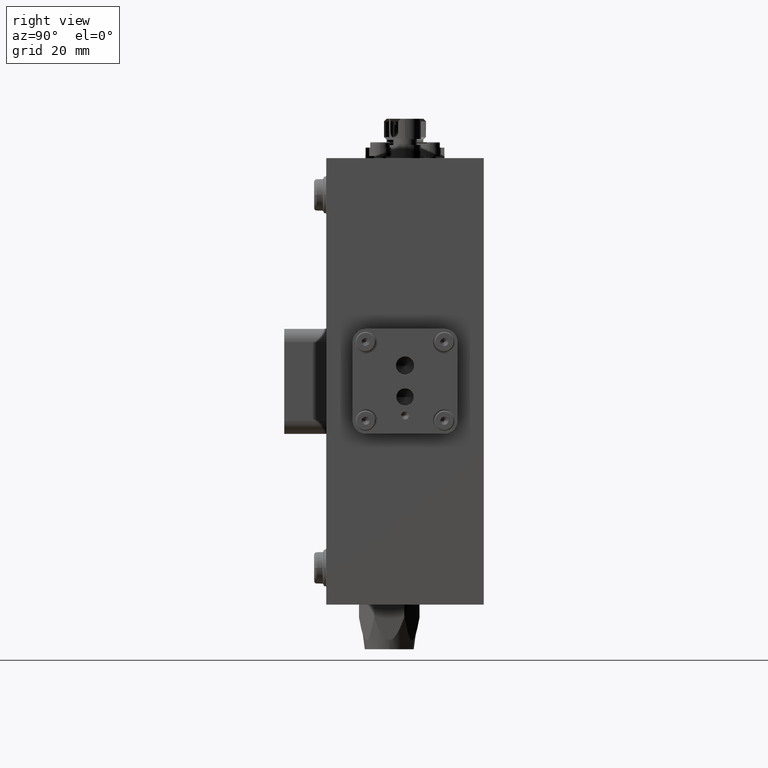
[diagram: clean part render]
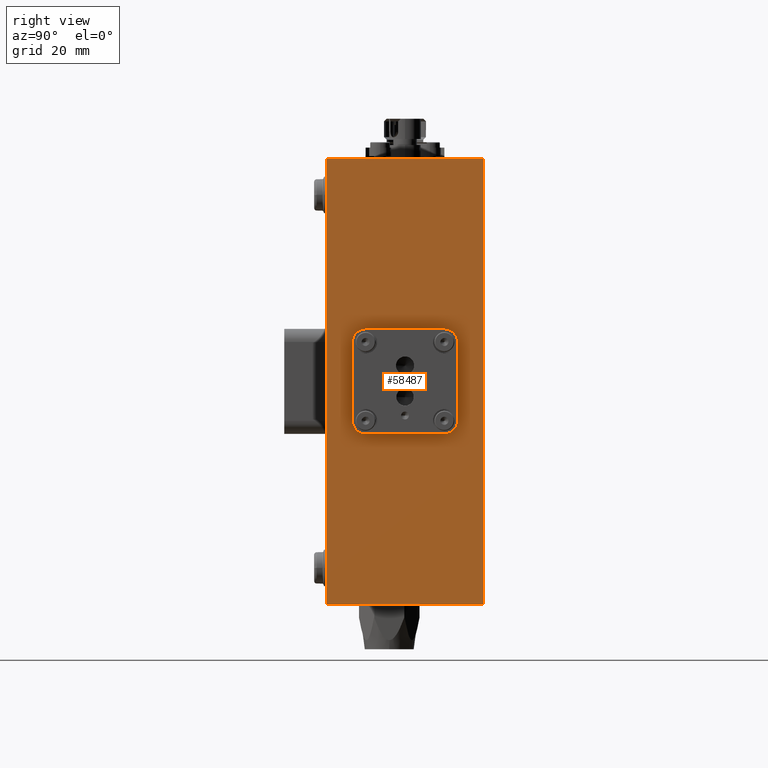
[diagram: same view with one face highlighted and labeled with its STEP entity id]
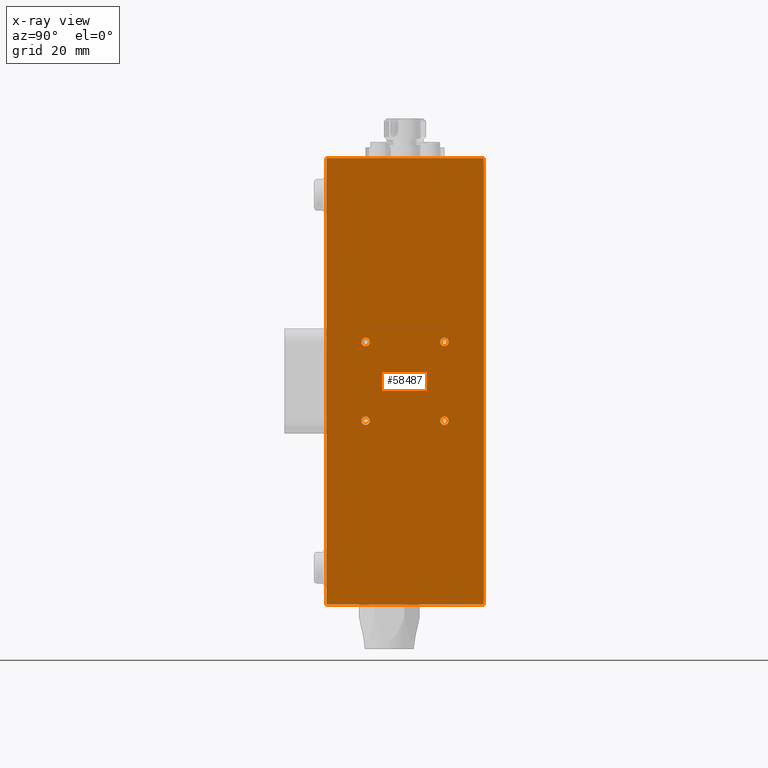
[diagram: x-ray of the same camera — body ghosted, the highlighted face saturated]
A machine part, right view. The second image highlights one B-rep face of the part: STEP entity #58487.
The next image is the same camera in x-ray: the body ghosted, the highlighted face saturated — about 0% of this face is hidden behind the body in this view.
In plain terms, the highlighted planar face has unit normal (-1, 0, 0).
Its self-contained STEP definition (entity closure, byte-faithful):
#9668 = CARTESIAN_POINT ( 'NONE',  ( 40.00000000000000000, 0.0000000000000000000, 42.49999999999999300 ) ) ;
#12467 = CARTESIAN_POINT ( 'NONE',  ( 40.00000000000000000, 30.00000000000000000, -42.49999999999999300 ) ) ;
#12607 = CARTESIAN_POINT ( 'NONE',  ( 40.00000000000000000, 30.00000000000000000, 42.49999999999999300 ) ) ;
#13657 = DIRECTION ( 'NONE',  ( -0.0000000000000000000, -0.0000000000000000000, -1.000000000000000000 ) ) ;
#13658 = VECTOR ( 'NONE', #13657, 1000.000000000000000 ) ;
#13659 = CARTESIAN_POINT ( 'NONE',  ( 40.00000000000000000, 0.0000000000000000000, -42.49999999999999300 ) ) ;
#13661 = LINE ( 'NONE', #13659, #13658 ) ;
#14645 = LINE ( 'NONE', #14701, #14700 ) ;
#14656 = DIRECTION ( 'NONE',  ( 0.0000000000000000000, 0.0000000000000000000, -1.000000000000000000 ) ) ;
#14657 = DIRECTION ( 'NONE',  ( 1.000000000000000000, -0.0000000000000000000, -0.0000000000000000000 ) ) ;
#14658 = CARTESIAN_POINT ( 'NONE',  ( 40.00000000000000000, 22.50000000000000000, -7.499999999999998200 ) ) ;
#14659 = AXIS2_PLACEMENT_3D ( 'NONE', #14658, #14657, #14656 ) ;
#14660 = CIRCLE ( 'NONE', #14659, 0.7999999999999882800 ) ;
#14682 = DIRECTION ( 'NONE',  ( -0.0000000000000000000, -1.000000000000000000, -0.0000000000000000000 ) ) ;
#14683 = VECTOR ( 'NONE', #14682, 1000.000000000000000 ) ;
#14684 = CARTESIAN_POINT ( 'NONE',  ( 40.00000000000000000, 30.00000000000000000, -42.49999999999999300 ) ) ;
#14685 = LINE ( 'NONE', #14684, #14683 ) ;
#14699 = DIRECTION ( 'NONE',  ( -0.0000000000000000000, -1.000000000000000000, -0.0000000000000000000 ) ) ;
#14700 = VECTOR ( 'NONE', #14699, 1000.000000000000000 ) ;
#14701 = CARTESIAN_POINT ( 'NONE',  ( 40.00000000000000000, 30.00000000000000000, 42.49999999999999300 ) ) ;
#14721 = DIRECTION ( 'NONE',  ( -0.0000000000000000000, -0.0000000000000000000, -1.000000000000000000 ) ) ;
#14722 = VECTOR ( 'NONE', #14721, 1000.000000000000000 ) ;
#14723 = CARTESIAN_POINT ( 'NONE',  ( 40.00000000000000000, 30.00000000000000000, -42.49999999999999300 ) ) ;
#14736 = LINE ( 'NONE', #14723, #14722 ) ;
#15441 = CARTESIAN_POINT ( 'NONE',  ( 40.00000000000000000, 22.50000000000000000, 7.500000000000001800 ) ) ;
#15513 = DIRECTION ( 'NONE',  ( 0.0000000000000000000, 0.0000000000000000000, -1.000000000000000000 ) ) ;
#15514 = DIRECTION ( 'NONE',  ( 1.000000000000000000, -0.0000000000000000000, -0.0000000000000000000 ) ) ;
#15519 = AXIS2_PLACEMENT_3D ( 'NONE', #15441, #15514, #15513 ) ;
#15521 = CIRCLE ( 'NONE', #15519, 0.7999999999999882800 ) ;
#15859 = AXIS2_PLACEMENT_3D ( 'NONE', #15957, #15948, #15947 ) ;
#15893 = CIRCLE ( 'NONE', #15859, 0.7999999999999899400 ) ;
#15924 = DIRECTION ( 'NONE',  ( 0.0000000000000000000, 0.0000000000000000000, 1.000000000000000000 ) ) ;
#15925 = DIRECTION ( 'NONE',  ( -1.000000000000000000, 0.0000000000000000000, 0.0000000000000000000 ) ) ;
#15932 = FACE_BOUND ( 'NONE', #58159, .T. ) ;
#15938 = PLANE ( 'NONE',  #15940 ) ;
#15939 = FACE_BOUND ( 'NONE', #57863, .T. ) ;
#15940 = AXIS2_PLACEMENT_3D ( 'NONE', #15945, #15925, #15924 ) ;
#15945 = CARTESIAN_POINT ( 'NONE',  ( 40.00000000000000000, 30.00000000000000000, -42.49999999999999300 ) ) ;
#15946 = FACE_BOUND ( 'NONE', #58724, .T. ) ;
#15947 = DIRECTION ( 'NONE',  ( 0.0000000000000000000, 0.0000000000000000000, -1.000000000000000000 ) ) ;
#15948 = DIRECTION ( 'NONE',  ( 1.000000000000000000, -0.0000000000000000000, -0.0000000000000000000 ) ) ;
#15951 = FACE_OUTER_BOUND ( 'NONE', #57900, .T. ) ;
#15957 = CARTESIAN_POINT ( 'NONE',  ( 40.00000000000000000, 7.500000000000000000, 7.500000000000003600 ) ) ;
#15959 = FACE_BOUND ( 'NONE', #58784, .T. ) ;
#15962 = CARTESIAN_POINT ( 'NONE',  ( 40.00000000000000000, 0.0000000000000000000, -42.49999999999999300 ) ) ;
#16803 = DIRECTION ( 'NONE',  ( 0.0000000000000000000, 0.0000000000000000000, -1.000000000000000000 ) ) ;
#16804 = DIRECTION ( 'NONE',  ( 1.000000000000000000, -0.0000000000000000000, -0.0000000000000000000 ) ) ;
#16808 = CIRCLE ( 'NONE', #16820, 0.7999999999999899400 ) ;
#16809 = CARTESIAN_POINT ( 'NONE',  ( 40.00000000000000000, 7.500000000000000000, -7.500000000000003600 ) ) ;
#16820 = AXIS2_PLACEMENT_3D ( 'NONE', #16809, #16804, #16803 ) ;
#41513 = CARTESIAN_POINT ( 'NONE',  ( 40.00000000000000000, 22.50000000000000000, -8.299999999999986500 ) ) ;
#41585 = CARTESIAN_POINT ( 'NONE',  ( 40.00000000000000000, 22.50000000000000000, -6.700000000000009900 ) ) ;
#41713 = CIRCLE ( 'NONE', #41716, 0.7999999999999882800 ) ;
#41715 = CARTESIAN_POINT ( 'NONE',  ( 40.00000000000000000, 22.50000000000000000, -7.499999999999998200 ) ) ;
#41716 = AXIS2_PLACEMENT_3D ( 'NONE', #41715, #41770, #41769 ) ;
#41769 = DIRECTION ( 'NONE',  ( 0.0000000000000000000, 0.0000000000000000000, -1.000000000000000000 ) ) ;
#41770 = DIRECTION ( 'NONE',  ( 1.000000000000000000, -0.0000000000000000000, -0.0000000000000000000 ) ) ;
#47287 = VERTEX_POINT ( 'NONE', #65372 ) ;
#47722 = VERTEX_POINT ( 'NONE', #65416 ) ;
#47740 = VERTEX_POINT ( 'NONE', #65444 ) ;
#47921 = EDGE_CURVE ( 'NONE', #47722, #48144, #65467, .T. ) ;
#48144 = VERTEX_POINT ( 'NONE', #65520 ) ;
#48345 = EDGE_CURVE ( 'NONE', #47287, #47740, #65570, .T. ) ;
#48985 = VERTEX_POINT ( 'NONE', #65649 ) ;
#52870 = VERTEX_POINT ( 'NONE', #102897 ) ;
#53431 = EDGE_CURVE ( 'NONE', #48985, #52870, #104581, .T. ) ;
#56482 = ORIENTED_EDGE ( 'NONE', *, *, #57885, .T. ) ;
#56521 = VERTEX_POINT ( 'NONE', #9668 ) ;
#57512 = VERTEX_POINT ( 'NONE', #12467 ) ;
#57582 = VERTEX_POINT ( 'NONE', #12607 ) ;
#57749 = ORIENTED_EDGE ( 'NONE', *, *, #47921, .F. ) ;
#57863 = EDGE_LOOP ( 'NONE', ( #57873, #58126 ) ) ;
#57873 = ORIENTED_EDGE ( 'NONE', *, *, #58150, .F. ) ;
#57885 = EDGE_CURVE ( 'NONE', #56521, #58508, #13661, .T. ) ;
#57900 = EDGE_LOOP ( 'NONE', ( #56482, #58502, #58166, #58199 ) ) ;
#58126 = ORIENTED_EDGE ( 'NONE', *, *, #78571, .F. ) ;
#58150 = EDGE_CURVE ( 'NONE', #78461, #78486, #14660, .T. ) ;
#58159 = EDGE_LOOP ( 'NONE', ( #58734, #58480 ) ) ;
#58161 = EDGE_CURVE ( 'NONE', #57582, #56521, #14645, .T. ) ;
#58166 = ORIENTED_EDGE ( 'NONE', *, *, #58190, .F. ) ;
#58171 = EDGE_CURVE ( 'NONE', #57512, #58508, #14685, .T. ) ;
#58190 = EDGE_CURVE ( 'NONE', #57582, #57512, #14736, .T. ) ;
#58199 = ORIENTED_EDGE ( 'NONE', *, *, #58161, .T. ) ;
#58431 = ORIENTED_EDGE ( 'NONE', *, *, #58477, .F. ) ;
#58441 = ORIENTED_EDGE ( 'NONE', *, *, #58493, .F. ) ;
#58467 = ORIENTED_EDGE ( 'NONE', *, *, #48345, .F. ) ;
#58477 = EDGE_CURVE ( 'NONE', #48144, #47722, #15893, .T. ) ;
#58480 = ORIENTED_EDGE ( 'NONE', *, *, #53431, .F. ) ;
#58487 = ADVANCED_FACE ( 'NONE', ( #15951, #15939, #15932, #15959, #15946 ), #15938, .F. ) ;
#58493 = EDGE_CURVE ( 'NONE', #47740, #47287, #15521, .T. ) ;
#58502 = ORIENTED_EDGE ( 'NONE', *, *, #58171, .F. ) ;
#58508 = VERTEX_POINT ( 'NONE', #15962 ) ;
#58724 = EDGE_LOOP ( 'NONE', ( #58441, #58467 ) ) ;
#58734 = ORIENTED_EDGE ( 'NONE', *, *, #58806, .F. ) ;
#58784 = EDGE_LOOP ( 'NONE', ( #58431, #57749 ) ) ;
#58806 = EDGE_CURVE ( 'NONE', #52870, #48985, #16808, .T. ) ;
#65372 = CARTESIAN_POINT ( 'NONE',  ( 40.00000000000000000, 22.50000000000000000, 8.299999999999990100 ) ) ;
#65416 = CARTESIAN_POINT ( 'NONE',  ( 40.00000000000000000, 7.500000000000000000, 8.299999999999993600 ) ) ;
#65444 = CARTESIAN_POINT ( 'NONE',  ( 40.00000000000000000, 22.50000000000000000, 6.700000000000013500 ) ) ;
#65467 = CIRCLE ( 'NONE', #65503, 0.7999999999999899400 ) ;
#65500 = DIRECTION ( 'NONE',  ( 0.0000000000000000000, 0.0000000000000000000, -1.000000000000000000 ) ) ;
#65501 = DIRECTION ( 'NONE',  ( 1.000000000000000000, -0.0000000000000000000, -0.0000000000000000000 ) ) ;
#65502 = CARTESIAN_POINT ( 'NONE',  ( 40.00000000000000000, 7.500000000000000000, 7.500000000000003600 ) ) ;
#65503 = AXIS2_PLACEMENT_3D ( 'NONE', #65502, #65501, #65500 ) ;
#65520 = CARTESIAN_POINT ( 'NONE',  ( 40.00000000000000000, 7.500000000000000000, 6.700000000000013500 ) ) ;
#65562 = DIRECTION ( 'NONE',  ( 0.0000000000000000000, 0.0000000000000000000, -1.000000000000000000 ) ) ;
#65563 = DIRECTION ( 'NONE',  ( 1.000000000000000000, -0.0000000000000000000, -0.0000000000000000000 ) ) ;
#65564 = CARTESIAN_POINT ( 'NONE',  ( 40.00000000000000000, 22.50000000000000000, 7.500000000000001800 ) ) ;
#65570 = CIRCLE ( 'NONE', #65581, 0.7999999999999882800 ) ;
#65581 = AXIS2_PLACEMENT_3D ( 'NONE', #65564, #65563, #65562 ) ;
#65649 = CARTESIAN_POINT ( 'NONE',  ( 40.00000000000000000, 7.500000000000000000, -6.700000000000013500 ) ) ;
#78461 = VERTEX_POINT ( 'NONE', #41513 ) ;
#78486 = VERTEX_POINT ( 'NONE', #41585 ) ;
#78571 = EDGE_CURVE ( 'NONE', #78486, #78461, #41713, .T. ) ;
#102897 = CARTESIAN_POINT ( 'NONE',  ( 40.00000000000000000, 7.500000000000000000, -8.299999999999993600 ) ) ;
#104581 = CIRCLE ( 'NONE', #104633, 0.7999999999999899400 ) ;
#104628 = DIRECTION ( 'NONE',  ( 0.0000000000000000000, 0.0000000000000000000, -1.000000000000000000 ) ) ;
#104630 = DIRECTION ( 'NONE',  ( 1.000000000000000000, -0.0000000000000000000, -0.0000000000000000000 ) ) ;
#104632 = CARTESIAN_POINT ( 'NONE',  ( 40.00000000000000000, 7.500000000000000000, -7.500000000000003600 ) ) ;
#104633 = AXIS2_PLACEMENT_3D ( 'NONE', #104632, #104630, #104628 ) ;